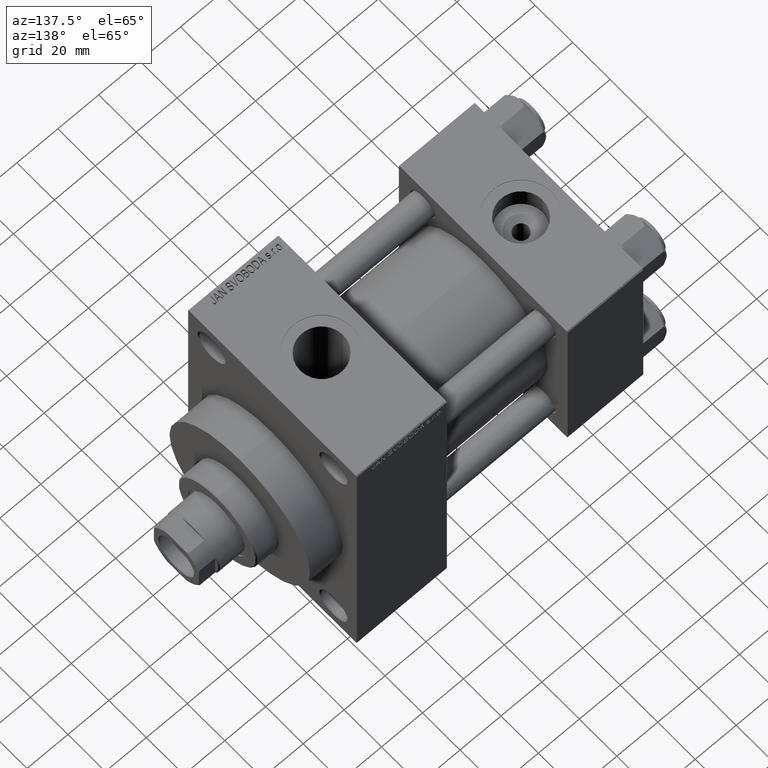
[diagram: clean part render]
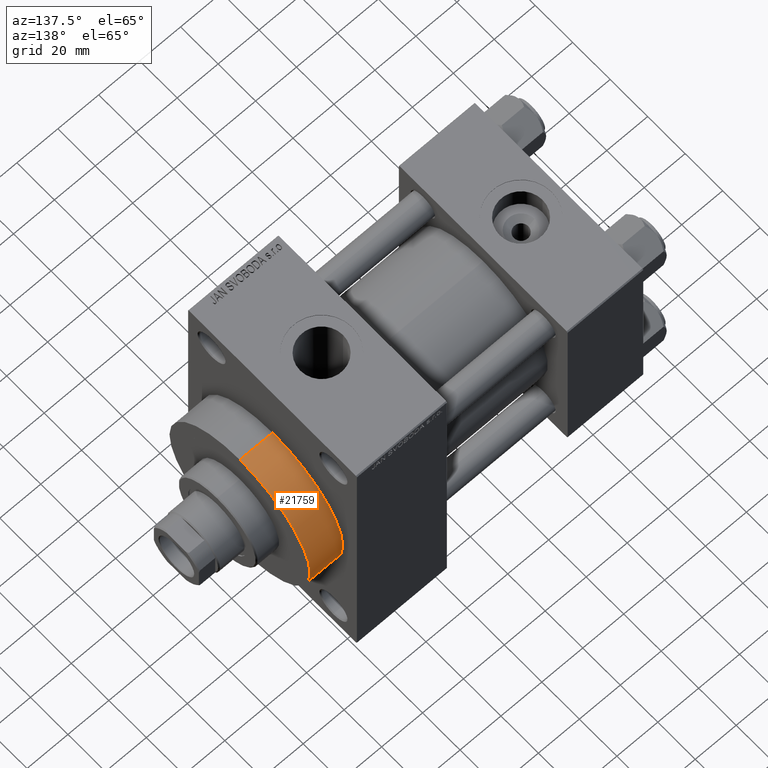
[diagram: same view with one face highlighted and labeled with its STEP entity id]
A machine part, auxiliary view. The second image highlights one B-rep face of the part: STEP entity #21759.
In plain terms, the highlighted cylindrical surface (partial cylindrical patch) has radius 37.5 mm, axis along (-1, -0, -0).
Its self-contained STEP definition (entity closure, byte-faithful):
#1080 = EDGE_CURVE ( 'NONE', #19102, #42532, #24472, .T. ) ;
#3013 = DIRECTION ( 'NONE',  ( -1.000000000000000000, -0.000000000000000000, -0.000000000000000000 ) ) ;
#3245 = VERTEX_POINT ( 'NONE', #43567 ) ;
#7403 = DIRECTION ( 'NONE',  ( -1.000000000000000000, -0.000000000000000000, -0.000000000000000000 ) ) ;
#7526 = CARTESIAN_POINT ( 'NONE',  ( 140.0000000000000000, 0.000000000000000000, 37.50000000000000711 ) ) ;
#9964 = VERTEX_POINT ( 'NONE', #7526 ) ;
#10963 = FACE_OUTER_BOUND ( 'NONE', #29382, .T. ) ;
#11299 = VECTOR ( 'NONE', #38821, 1000.000000000000000 ) ;
#11520 = DIRECTION ( 'NONE',  ( 1.000000000000000000, 0.000000000000000000, 0.000000000000000000 ) ) ;
#11685 = DIRECTION ( 'NONE',  ( 0.000000000000000000, 0.000000000000000000, 1.000000000000000000 ) ) ;
#14559 = CYLINDRICAL_SURFACE ( 'NONE', #20238, 37.50000000000000711 ) ;
#14956 = ORIENTED_EDGE ( 'NONE', *, *, #1080, .T. ) ;
#16887 = EDGE_CURVE ( 'NONE', #19102, #3245, #40653, .T. ) ;
#18924 = CARTESIAN_POINT ( 'NONE',  ( 140.0000000000000000, 0.000000000000000000, 0.000000000000000000 ) ) ;
#19102 = VERTEX_POINT ( 'NONE', #41506 ) ;
#20068 = AXIS2_PLACEMENT_3D ( 'NONE', #45905, #20115, #34686 ) ;
#20115 = DIRECTION ( 'NONE',  ( 1.000000000000000000, 0.000000000000000000, 0.000000000000000000 ) ) ;
#20238 = AXIS2_PLACEMENT_3D ( 'NONE', #22670, #7403, #11685 ) ;
#21759 = ADVANCED_FACE ( 'NONE', ( #10963 ), #14559, .T. ) ;
#21846 = LINE ( 'NONE', #32585, #27422 ) ;
#22670 = CARTESIAN_POINT ( 'NONE',  ( 156.0000000000000284, 0.000000000000000000, 0.000000000000000000 ) ) ;
#23896 = CARTESIAN_POINT ( 'NONE',  ( 140.0000000000000000, 4.592425496802575156E-15, -37.50000000000000711 ) ) ;
#24472 = LINE ( 'NONE', #28043, #11299 ) ;
#27422 = VECTOR ( 'NONE', #3013, 1000.000000000000000 ) ;
#28043 = CARTESIAN_POINT ( 'NONE',  ( 156.0000000000000284, 4.592425496802575156E-15, -37.50000000000000711 ) ) ;
#29382 = EDGE_LOOP ( 'NONE', ( #30435, #14956, #45572, #36680 ) ) ;
#30435 = ORIENTED_EDGE ( 'NONE', *, *, #16887, .F. ) ;
#31622 = EDGE_CURVE ( 'NONE', #42532, #9964, #37973, .T. ) ;
#32585 = CARTESIAN_POINT ( 'NONE',  ( 156.0000000000000284, 0.000000000000000000, 37.50000000000000711 ) ) ;
#34686 = DIRECTION ( 'NONE',  ( 0.000000000000000000, 0.000000000000000000, -1.000000000000000000 ) ) ;
#35722 = EDGE_CURVE ( 'NONE', #3245, #9964, #21846, .T. ) ;
#36680 = ORIENTED_EDGE ( 'NONE', *, *, #35722, .F. ) ;
#37070 = DIRECTION ( 'NONE',  ( 0.000000000000000000, 0.000000000000000000, -1.000000000000000000 ) ) ;
#37183 = AXIS2_PLACEMENT_3D ( 'NONE', #18924, #11520, #37070 ) ;
#37973 = CIRCLE ( 'NONE', #37183, 37.50000000000000711 ) ;
#38821 = DIRECTION ( 'NONE',  ( -1.000000000000000000, -0.000000000000000000, -0.000000000000000000 ) ) ;
#40653 = CIRCLE ( 'NONE', #20068, 37.50000000000000711 ) ;
#41506 = CARTESIAN_POINT ( 'NONE',  ( 156.0000000000000284, 4.592425496802575156E-15, -37.50000000000000711 ) ) ;
#42532 = VERTEX_POINT ( 'NONE', #23896 ) ;
#43567 = CARTESIAN_POINT ( 'NONE',  ( 156.0000000000000284, 0.000000000000000000, 37.50000000000000711 ) ) ;
#45572 = ORIENTED_EDGE ( 'NONE', *, *, #31622, .T. ) ;
#45905 = CARTESIAN_POINT ( 'NONE',  ( 156.0000000000000284, 0.000000000000000000, 0.000000000000000000 ) ) ;